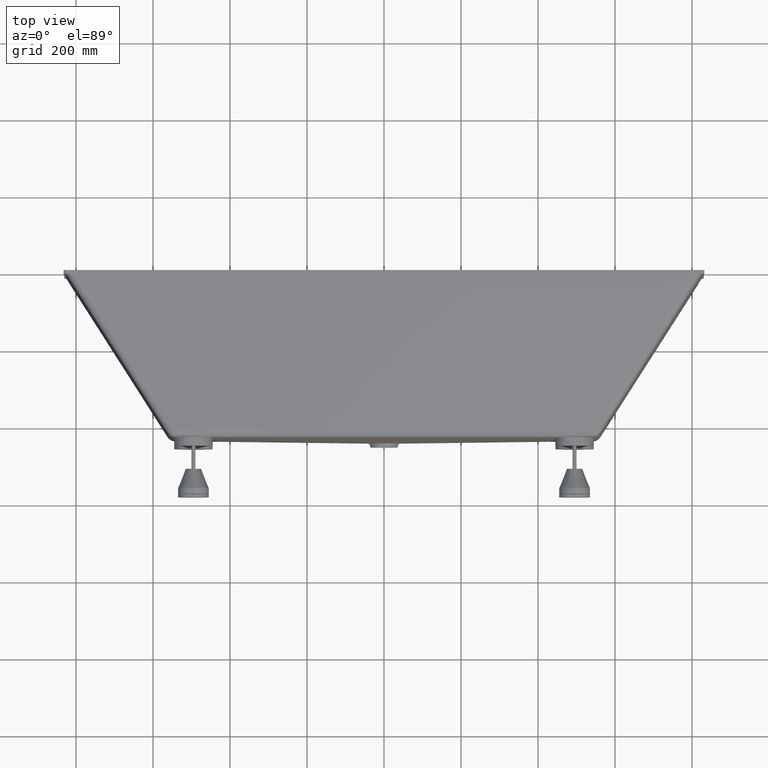
[diagram: clean part render]
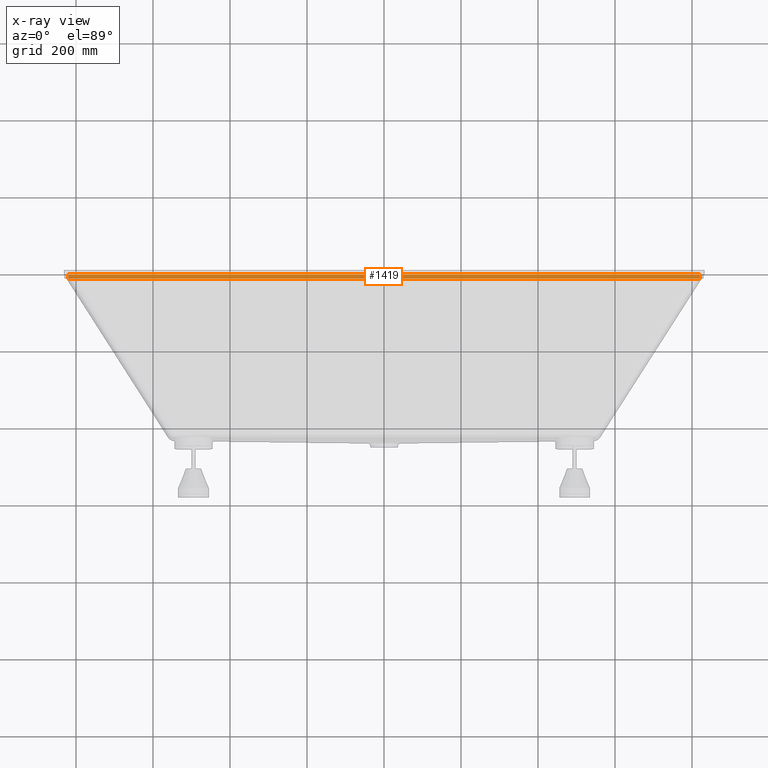
[diagram: x-ray — body ghosted, one internal face saturated and labeled with its STEP entity id]
A machine part, top view, then the same camera in x-ray: the body is ghosted and one INTERNAL B-rep face — a face not visible from any outside direction — is saturated and labeled: STEP entity #1419.
In plain terms, the highlighted planar face has unit normal (0, 0, -1).
Its self-contained STEP definition (entity closure, byte-faithful):
#636 = EDGE_CURVE ( 'NONE', #3936, #4003, #6489, .T. ) ;
#768 = CARTESIAN_POINT ( 'NONE',  ( 820.0000000000002300, 0.0000000000000000000, -345.0000000000000600 ) ) ;
#1135 = CARTESIAN_POINT ( 'NONE',  ( -820.0000000000000000, -10.00000000000000000, -345.0000000000000600 ) ) ;
#1213 = DIRECTION ( 'NONE',  ( 0.0000000000000000000, 1.000000000000000000, 0.0000000000000000000 ) ) ;
#1419 = ADVANCED_FACE ( 'NONE', ( #2923 ), #1959, .F. ) ;
#1542 = EDGE_CURVE ( 'NONE', #5091, #5379, #2203, .T. ) ;
#1889 = CARTESIAN_POINT ( 'NONE',  ( -820.0000000000000000, 0.0000000000000000000, -345.0000000000000600 ) ) ;
#1914 = VECTOR ( 'NONE', #6247, 1000.000000000000000 ) ;
#1941 = DIRECTION ( 'NONE',  ( -1.000000000000000000, 0.0000000000000000000, -0.0000000000000000000 ) ) ;
#1959 = PLANE ( 'NONE',  #4390 ) ;
#1971 = ORIENTED_EDGE ( 'NONE', *, *, #636, .T. ) ;
#1995 = CARTESIAN_POINT ( 'NONE',  ( -820.0000000000000000, -10.00000000000000000, -345.0000000000000600 ) ) ;
#2009 = CARTESIAN_POINT ( 'NONE',  ( -820.0000000000000000, -10.00000000000000000, -345.0000000000000600 ) ) ;
#2074 = DIRECTION ( 'NONE',  ( 0.0000000000000000000, 0.0000000000000000000, -1.000000000000000000 ) ) ;
#2203 = LINE ( 'NONE', #1995, #8281 ) ;
#2571 = CARTESIAN_POINT ( 'NONE',  ( -820.0000000000000000, -10.00000000000000000, -345.0000000000000600 ) ) ;
#2923 = FACE_OUTER_BOUND ( 'NONE', #3769, .T. ) ;
#3769 = EDGE_LOOP ( 'NONE', ( #5596, #5710, #8699, #1971 ) ) ;
#3936 = VERTEX_POINT ( 'NONE', #4570 ) ;
#3954 = LINE ( 'NONE', #1135, #1914 ) ;
#4003 = VERTEX_POINT ( 'NONE', #768 ) ;
#4313 = DIRECTION ( 'NONE',  ( -1.000000000000000000, -0.0000000000000000000, -0.0000000000000000000 ) ) ;
#4354 = CARTESIAN_POINT ( 'NONE',  ( -820.0000000000000000, 0.0000000000000000000, -345.0000000000000600 ) ) ;
#4390 = AXIS2_PLACEMENT_3D ( 'NONE', #2009, #2074, #1941 ) ;
#4570 = CARTESIAN_POINT ( 'NONE',  ( 820.0000000000002300, -10.00000000000000000, -345.0000000000000600 ) ) ;
#4768 = VECTOR ( 'NONE', #4313, 1000.000000000000000 ) ;
#5091 = VERTEX_POINT ( 'NONE', #2571 ) ;
#5379 = VERTEX_POINT ( 'NONE', #1889 ) ;
#5596 = ORIENTED_EDGE ( 'NONE', *, *, #8520, .T. ) ;
#5710 = ORIENTED_EDGE ( 'NONE', *, *, #1542, .F. ) ;
#6028 = CARTESIAN_POINT ( 'NONE',  ( 820.0000000000002300, -10.00000000000000000, -345.0000000000000600 ) ) ;
#6092 = DIRECTION ( 'NONE',  ( 0.0000000000000000000, 1.000000000000000000, 0.0000000000000000000 ) ) ;
#6247 = DIRECTION ( 'NONE',  ( -1.000000000000000000, -0.0000000000000000000, -0.0000000000000000000 ) ) ;
#6489 = LINE ( 'NONE', #6028, #8967 ) ;
#6977 = LINE ( 'NONE', #4354, #4768 ) ;
#8281 = VECTOR ( 'NONE', #1213, 1000.000000000000000 ) ;
#8520 = EDGE_CURVE ( 'NONE', #4003, #5379, #6977, .T. ) ;
#8699 = ORIENTED_EDGE ( 'NONE', *, *, #9936, .F. ) ;
#8967 = VECTOR ( 'NONE', #6092, 1000.000000000000000 ) ;
#9936 = EDGE_CURVE ( 'NONE', #3936, #5091, #3954, .T. ) ;